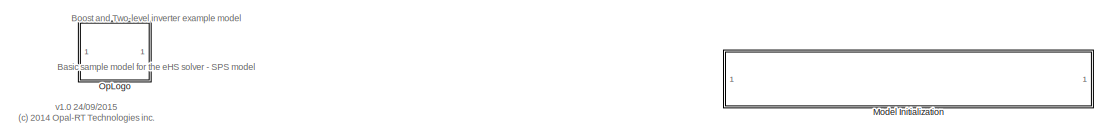
[diagram: root canvas - part 1/3, top left region]
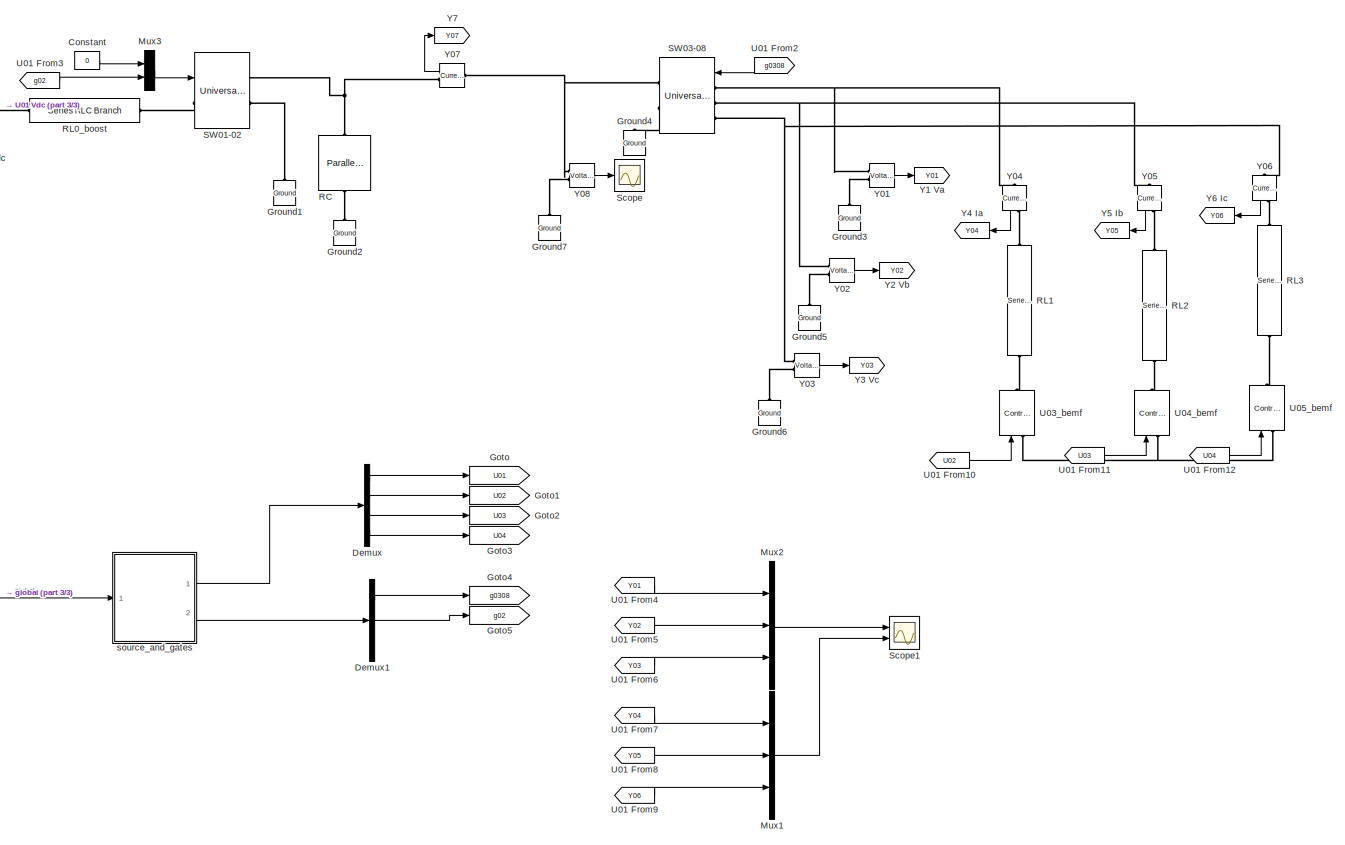
[diagram: root canvas - part 2/3, most of the canvas]
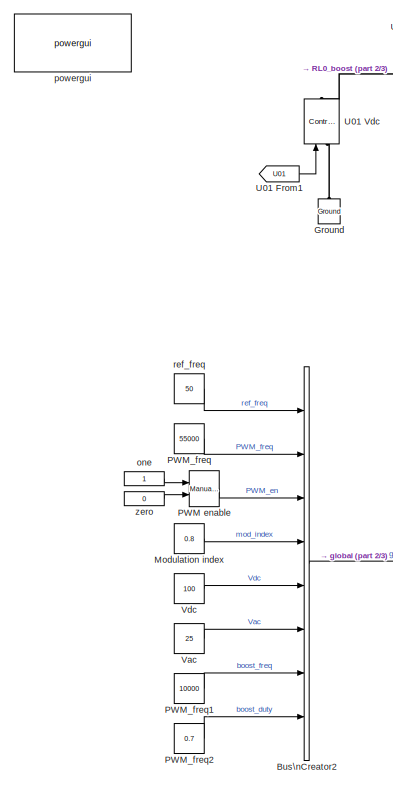
[diagram: root canvas - part 3/3, left side, full height]
MODEL boost_and_two_level_bridge_sps
KIND model
CONFIG InitFcn = Ts = 20e-6;
CONFIG PostLoadFcn = Ts = 20e-6;
BLOCK [BusCreator] Bus\nCreator2
  DisplayOption = bar
  Inputs = 8
  Ports = [8, 1]
  SID = 854
BLOCK [Constant] Constant
  SID = 906
  Value = 0
BLOCK [Demux] Demux
  DisplayOption = bar
  Ports = [1, 4]
  SID = 872
BLOCK [Demux] Demux1
  DisplayOption = bar
  Outputs = [6 1 -1]
  Ports = [1, 3]
  SID = 877
BLOCK [Goto] Goto
  GotoTag = U01
  SID = 873
  TagVisibility = local
BLOCK [Goto] Goto1
  GotoTag = U02
  SID = 874
  TagVisibility = local
BLOCK [Goto] Goto2
  GotoTag = U03
  SID = 875
  TagVisibility = local
BLOCK [Goto] Goto3
  GotoTag = U04
  SID = 876
  TagVisibility = local
BLOCK [Goto] Goto4
  GotoTag = g0308
  SID = 878
  TagVisibility = local
BLOCK [Goto] Goto5
  GotoTag = g02
  SID = 882
  TagVisibility = local
BLOCK [Reference] Ground  REF=powerlib/Elements/Ground
  LConnTagsString = a
  Ports = [0, 0, 0, 0, 0, 1]
  SID = 733
  SourceBlock = powerlib/Elements/Ground
  SourceType = Ground
BLOCK [Reference] Ground1  REF=powerlib/Elements/Ground
  LConnTagsString = a
  Ports = [0, 0, 0, 0, 0, 1]
  SID = 818
  SourceBlock = powerlib/Elements/Ground
  SourceType = Ground
BLOCK [Reference] Ground2  REF=powerlib/Elements/Ground
  LConnTagsString = a
  Ports = [0, 0, 0, 0, 0, 1]
  SID = 819
  SourceBlock = powerlib/Elements/Ground
  SourceType = Ground
BLOCK [Reference] Ground3  REF=powerlib/Elements/Ground
  LConnTagsString = a
  Ports = [0, 0, 0, 0, 0, 1]
  SID = 802
  SourceBlock = powerlib/Elements/Ground
  SourceType = Ground
BLOCK [Reference] Ground4  REF=powerlib/Elements/Ground
  LConnTagsString = a
  Ports = [0, 0, 0, 0, 0, 1]
  SID = 820
  SourceBlock = powerlib/Elements/Ground
  SourceType = Ground
BLOCK [Reference] Ground5  REF=powerlib/Elements/Ground
  LConnTagsString = a
  Ports = [0, 0, 0, 0, 0, 1]
  SID = 803
  SourceBlock = powerlib/Elements/Ground
  SourceType = Ground
BLOCK [Reference] Ground6  REF=powerlib/Elements/Ground
  LConnTagsString = a
  Ports = [0, 0, 0, 0, 0, 1]
  SID = 804
  SourceBlock = powerlib/Elements/Ground
  SourceType = Ground
BLOCK [Reference] Ground7  REF=powerlib/Elements/Ground
  LConnTagsString = a
  Ports = [0, 0, 0, 0, 0, 1]
  SID = 822
  SourceBlock = powerlib/Elements/Ground
  SourceType = Ground
BLOCK [SubSystem] Model Initialization
  CopyFcn = set_param(gcb,'LinkStatus','none')
  FunctionWithSeparateData = off
  MaskCallbackString = ||||
  MaskDisplay = \ntext(5, height*0.5, txt, 'horizontalAlignment', 'left', 'verticalAlignment', 'middle') ;\n
  MaskEnableString = on,on,on,on,on
  MaskHideContents = off
  MaskIconFrame = on
  MaskIconOpaque = on
  MaskIconRotate = none
  MaskIconUnits = pixels
  MaskInitialization = currentBlock = gcb;\nroot = bdroot(currentBlock);\n\nif ~strcmp(get_param(root,'BlockDiagramType'),'library')\n    if prel==1\n        set_param(root, 'PreLoadFcn', InitFcnX);\n    else\n        set_param(root, 'PreLoadFcn', '');\n    end\n    if inif==1\n        set_param(root, 'InitFcn', InitFcnX);\n    else\n        set_param(root, 'InitFcn', '');\n    end\n    if strf==1\n        set_param(roo...<+402ch>
  MaskPortRotate = default
  MaskPromptString = Initialisation|Preload Function|PostLoad Function|InitFcn|StartFcn
  MaskStyleString = edit,checkbox,checkbox,checkbox,checkbox
  MaskToolTipString = on,on,on,on,on
  MaskTunableValueString = on,on,on,on,on
  MaskType = Model Functions
  MaskValueString = Ts = 20e-6;|off|on|on|off
  MaskVariables = InitFcnX=&1;prel=@2;posl=@3;inif=@4;strf=@5;
  MaskVisibilityString = on,on,on,on,on
  MinAlgLoopOccurrences = off
  Opaque = off
  Ports = []
  PropExecContextOutsideSubsystem = off
  RTWSystemCode = Auto
  RequestExecContextInheritance = off
  SID = 909
BLOCK [Constant] Modulation index
  SID = 855
  Value = 0.8
BLOCK [Mux] Mux1
  DisplayOption = bar
  Inputs = 3
  Ports = [3, 1]
  SID = 889
BLOCK [Mux] Mux2
  DisplayOption = bar
  Inputs = 3
  Ports = [3, 1]
  SID = 890
BLOCK [Mux] Mux3
  DisplayOption = bar
  Inputs = 2
  Ports = [2, 1]
  SID = 903
BLOCK [SubSystem] OpLogo
  FunctionWithSeparateData = off
  MaskDisplay = opLogo = imread('efsOpLogo.tif','tif');\nimage(opLogo(:,:,1:3));
  MaskHideContents = off
  MaskIconFrame = on
  MaskIconOpaque = on
  MaskIconRotate = none
  MaskIconUnits = autoscale
  MaskPortRotate = default
  MinAlgLoopOccurrences = off
  Opaque = off
  Ports = []
  PropExecContextOutsideSubsystem = off
  RTWSystemCode = Auto
  RequestExecContextInheritance = off
  SID = 784
BLOCK [Reference] PWM enable  REF=simulink/Signal\nRouting/Manual Switch
  Ports = [2, 1]
  SID = 856
  SourceBlock = simulink/Signal\nRouting/Manual Switch
  SourceType = Manual Switch
  action = 0
  sw = 1
  varsize = off
BLOCK [Constant] PWM_freq
  SID = 857
  Value = 55000
BLOCK [Constant] PWM_freq1
  SID = 899
  Value = 10000
BLOCK [Constant] PWM_freq2
  SID = 900
  Value = 0.7
BLOCK [Reference] RC  REF=powerlib/Elements/Parallel RLC Branch
  AttributesFormatString = \\n
  BranchType = RC
  Capacitance = 10e-3
  Inductance = 1e-3
  InitialCurrent = 0
  InitialVoltage = 0
  LConnTagsString = a
  Measurements = None
  Ports = [0, 0, 0, 0, 0, 1, 1]
  RConnTagsString = __new0
  Resistance = 1e5
  SID = 814
  SetiL0 = off
  Setx0 = off
  SourceBlock = powerlib/Elements/Parallel RLC Branch
  SourceType = Parallel RLC Branch
BLOCK [Reference] RL0_boost  REF=powerlib/Elements/Series RLC Branch
  BranchType = RL
  Capacitance = 2000e-6
  Inductance = 200e-6
  InitialCurrent = 0
  InitialVoltage = 0
  LConnTagsString = __new0
  Measurements = None
  Ports = [0, 0, 0, 0, 0, 1, 1]
  RConnTagsString = __new0
  Resistance = 10e-3
  SID = 813
  SetiL0 = off
  Setx0 = off
  SourceBlock = powerlib/Elements/Series RLC Branch
  SourceType = Series RLC Branch
BLOCK [Reference] RL1  REF=powerlib/Elements/Series RLC Branch
  BranchType = RL
  Capacitance = 2000e-6
  Inductance = 0.2e-3
  InitialCurrent = 0
  InitialVoltage = 0
  LConnTagsString = __new0
  Measurements = None
  Ports = [0, 0, 0, 0, 0, 1, 1]
  RConnTagsString = __new0
  Resistance = 0.1
  SID = 738
  SetiL0 = off
  Setx0 = off
  SourceBlock = powerlib/Elements/Series RLC Branch
  SourceType = Series RLC Branch
BLOCK [Reference] RL2  REF=powerlib/Elements/Series RLC Branch
  BranchType = RL
  Capacitance = 2000e-6
  Inductance = 0.2e-3
  InitialCurrent = 0
  InitialVoltage = 0
  LConnTagsString = __new0
  Measurements = None
  Ports = [0, 0, 0, 0, 0, 1, 1]
  RConnTagsString = __new0
  Resistance = 0.1
  SID = 907
  SetiL0 = off
  Setx0 = off
  SourceBlock = powerlib/Elements/Series RLC Branch
  SourceType = Series RLC Branch
BLOCK [Reference] RL3  REF=powerlib/Elements/Series RLC Branch
  BranchType = RL
  Capacitance = 2000e-6
  Inductance = 0.2e-3
  InitialCurrent = 0
  InitialVoltage = 0
  LConnTagsString = __new0
  Measurements = None
  Ports = [0, 0, 0, 0, 0, 1, 1]
  RConnTagsString = __new0
  Resistance = 0.1
  SID = 908
  SetiL0 = off
  Setx0 = off
  SourceBlock = powerlib/Elements/Series RLC Branch
  SourceType = Series RLC Branch
BLOCK [Reference] SW01-02  REF=powerlib/Power\nElectronics/Universal Bridge
  Arms = 1
  Device = IGBT / Diodes
  ForwardVoltage = 0
  ForwardVoltages = [  0  0  ]
  GTOparameters = [ 10e-6 , 20e-6 ]
  IGBTparameters = [0, 0]
  Lon = 0
  Measurements = None
  Measurements_2 = None
  Ports = [1, 0, 0, 0, 0, 1, 2]
  Ron = 1e-3
  SID = 902
  SnubberCapacitance = inf
  SnubberResistance = 1e5
  SourceBlock = powerlib/Power\nElectronics/Universal Bridge
  SourceType = Universal Bridge
  converterType = Rectifier
BLOCK [Reference] SW03-08  REF=powerlib/Power\nElectronics/Universal Bridge
  Arms = 3
  Device = IGBT / Diodes
  ForwardVoltage = 0
  ForwardVoltages = [  0  0  ]
  GTOparameters = [ 10e-6 , 20e-6 ]
  IGBTparameters = [0, 0]
  Lon = 0
  Measurements = None
  Measurements_2 = None
  Ports = [1, 0, 0, 0, 0, 3, 2]
  Ron = 1e-3
  SID = 812
  SnubberCapacitance = inf
  SnubberResistance = 1e5
  SourceBlock = powerlib/Power\nElectronics/Universal Bridge
  SourceType = Universal Bridge
  converterType = Rectifier
BLOCK [Scope] Scope
  DataFormat = StructureWithTime
  Floating = off
  LimitDataPoints = off
  NumInputPorts = 1
  Ports = [1]
  SID = 886
  SampleTime = 0
  SaveName = ScopeData1
  YMax = 400
  YMin = 290
BLOCK [Scope] Scope1
  DataFormat = StructureWithTime
  Floating = off
  LimitDataPoints = off
  NumInputPorts = 2
  Ports = [2]
  SID = 887
  SampleTime = 0
  SaveName = ScopeData2
  YMax = 5~5
  YMin = -5~-5
BLOCK [From] U01 From1
  GotoTag = U01
  SID = 751
BLOCK [From] U01 From10
  GotoTag = U02
  SID = 808
BLOCK [From] U01 From11
  GotoTag = U03
  SID = 809
BLOCK [From] U01 From12
  GotoTag = U04
  SID = 810
BLOCK [From] U01 From2
  GotoTag = g0308
  SID = 883
BLOCK [From] U01 From3
  GotoTag = g02
  SID = 884
BLOCK [From] U01 From4
  GotoTag = Y01
  SID = 891
BLOCK [From] U01 From5
  GotoTag = Y02
  SID = 892
BLOCK [From] U01 From6
  GotoTag = Y03
  SID = 893
BLOCK [From] U01 From7
  GotoTag = Y04
  SID = 894
BLOCK [From] U01 From8
  GotoTag = Y05
  SID = 895
BLOCK [From] U01 From9
  GotoTag = Y06
  SID = 896
BLOCK [Reference] U01 Vdc  REF=powerlib/Electrical\nSources/Controlled Voltage Source
  Amplitude = 0
  Frequency = 0
  Initialize = on
  Measurements = None
  Phase = 0
  Ports = [1, 0, 0, 0, 0, 1, 1]
  SID = 750
  SourceBlock = powerlib/Electrical\nSources/Controlled Voltage Source
  SourceType = Controlled Voltage Source
  Source_Type = AC
BLOCK [Reference] U03_bemf  REF=powerlib/Electrical\nSources/Controlled Voltage Source
  Amplitude = 0
  Frequency = 0
  Initialize = on
  Measurements = None
  Phase = 0
  Ports = [1, 0, 0, 0, 0, 1, 1]
  SID = 799
  SourceBlock = powerlib/Electrical\nSources/Controlled Voltage Source
  SourceType = Controlled Voltage Source
  Source_Type = AC
BLOCK [Reference] U04_bemf  REF=powerlib/Electrical\nSources/Controlled Voltage Source
  Amplitude = 0
  Frequency = 0
  Initialize = on
  Measurements = None
  Phase = 0
  Ports = [1, 0, 0, 0, 0, 1, 1]
  SID = 800
  SourceBlock = powerlib/Electrical\nSources/Controlled Voltage Source
  SourceType = Controlled Voltage Source
  Source_Type = AC
BLOCK [Reference] U05_bemf  REF=powerlib/Electrical\nSources/Controlled Voltage Source
  Amplitude = 0
  Frequency = 0
  Initialize = on
  Measurements = None
  Phase = 0
  Ports = [1, 0, 0, 0, 0, 1, 1]
  SID = 801
  SourceBlock = powerlib/Electrical\nSources/Controlled Voltage Source
  SourceType = Controlled Voltage Source
  Source_Type = AC
BLOCK [Constant] Vac
  SID = 858
  Value = 25
BLOCK [Constant] Vdc
  SID = 859
  Value = 100
BLOCK [Reference] Y01  REF=powerlib/Measurements/Voltage Measurement
  OutputType = Complex
  PSBequivalent = 0
  PhasorSimulation = off
  Ports = [0, 1, 0, 0, 0, 2]
  SID = 767
  SourceBlock = powerlib/Measurements/Voltage Measurement
  SourceType = Voltage Measurement
BLOCK [Reference] Y02  REF=powerlib/Measurements/Voltage Measurement
  OutputType = Complex
  PSBequivalent = 0
  PhasorSimulation = off
  Ports = [0, 1, 0, 0, 0, 2]
  SID = 768
  SourceBlock = powerlib/Measurements/Voltage Measurement
  SourceType = Voltage Measurement
BLOCK [Reference] Y03  REF=powerlib/Measurements/Voltage Measurement
  OutputType = Complex
  PSBequivalent = 0
  PhasorSimulation = off
  Ports = [0, 1, 0, 0, 0, 2]
  SID = 769
  SourceBlock = powerlib/Measurements/Voltage Measurement
  SourceType = Voltage Measurement
BLOCK [Reference] Y04  REF=powerlib/Measurements/Current Measurement
  OutputType = Complex
  PSBequivalent = 0
  PhasorSimulation = off
  Ports = [0, 1, 0, 0, 0, 1, 1]
  SID = 770
  SourceBlock = powerlib/Measurements/Current Measurement
  SourceType = Current Measurement
BLOCK [Reference] Y05  REF=powerlib/Measurements/Current Measurement
  OutputType = Complex
  PSBequivalent = 0
  PhasorSimulation = off
  Ports = [0, 1, 0, 0, 0, 1, 1]
  SID = 771
  SourceBlock = powerlib/Measurements/Current Measurement
  SourceType = Current Measurement
BLOCK [Reference] Y06  REF=powerlib/Measurements/Current Measurement
  OutputType = Complex
  PSBequivalent = 0
  PhasorSimulation = off
  Ports = [0, 1, 0, 0, 0, 1, 1]
  SID = 772
  SourceBlock = powerlib/Measurements/Current Measurement
  SourceType = Current Measurement
BLOCK [Reference] Y07  REF=powerlib/Measurements/Current Measurement
  OutputType = Complex
  PSBequivalent = 0
  PhasorSimulation = off
  Ports = [0, 1, 0, 0, 0, 1, 1]
  SID = 773
  SourceBlock = powerlib/Measurements/Current Measurement
  SourceType = Current Measurement
BLOCK [Reference] Y08  REF=powerlib/Measurements/Voltage Measurement
  OutputType = Complex
  PSBequivalent = 0
  PhasorSimulation = off
  Ports = [0, 1, 0, 0, 0, 2]
  SID = 821
  SourceBlock = powerlib/Measurements/Voltage Measurement
  SourceType = Voltage Measurement
BLOCK [Goto] Y1 Va
  GotoTag = Y01
  SID = 775
  TagVisibility = local
BLOCK [Goto] Y2 Vb
  GotoTag = Y02
  SID = 776
  TagVisibility = local
BLOCK [Goto] Y3 Vc
  GotoTag = Y03
  SID = 777
  TagVisibility = local
BLOCK [Goto] Y4 Ia
  GotoTag = Y04
  SID = 778
  TagVisibility = local
BLOCK [Goto] Y5 Ib
  GotoTag = Y05
  SID = 779
  TagVisibility = local
BLOCK [Goto] Y6 Ic
  GotoTag = Y06
  SID = 780
  TagVisibility = local
BLOCK [Goto] Y7
  GotoTag = Y07
  SID = 781
  TagVisibility = local
BLOCK [Constant] one
  SID = 860
BLOCK [Reference] powergui  REF=powerlib/powergui
  DisableRonSwitches = off
  DisableSnubberDevices = off
  DisableVfSwitches = off
  DisplayEquations = off
  DisplayStyle = 1
  EnableUseOfTLC = off
  ErrMax = 1e-4
  Frange = [0:2:500]
  FreqAxis = off
  FunctionMessages = off
  HookPort = off
  Interpol = off
  Iterations = 50
  MaxFrequency = 1000
  Pbase = 100e6
  Ports = []
  Priority = 1
  ResistiveCurrentMeasurement = off
  RestoreLinks = warning
  RmsSteady = 1
  SID = 24
  SPID = off
  SampleTime = Ts
  ShowGrid = off
  SolverType = Tustin
  SourceBlock = powerlib/powergui
  SourceType = PSB option menu block
  StartTime = 7.29
  SwTol = 0
  Ts = 0
  UnitsV = kV
  UnitsW = MW
  UserData = DataTag0
  UserDataPersistent = on
  Xlog = on
  Ylog = off
  ZoomFFT = off
  cycles = 3
  display = off
  echomessages = off
  frequency = 60
  frequencyindice = 0
  frequencyindicesteady = 1
  fundamental = 50
  methode = off
  save = off
  structure = ScopeData
  variable = ZData
  x0status = blocks
BLOCK [Constant] ref_freq
  SID = 865
  Value = 50
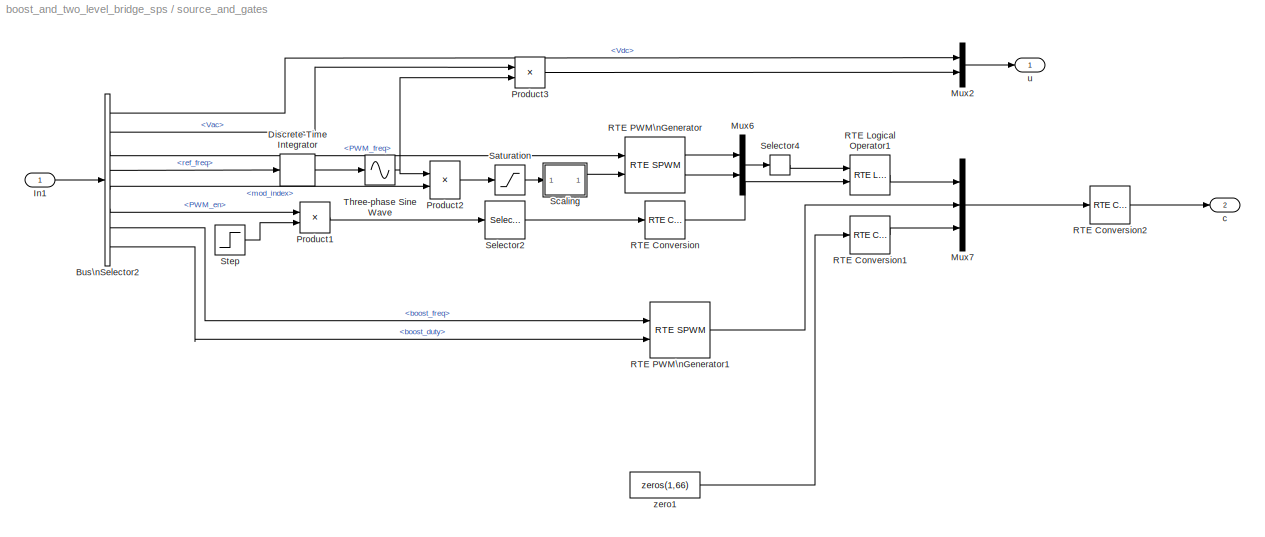
BLOCK [SubSystem] source_and_gates
  FunctionWithSeparateData = off
  MaskHideContents = off
  MinAlgLoopOccurrences = off
  Opaque = off
  Ports = [1, 2]
  PropExecContextOutsideSubsystem = off
  RTWSystemCode = Auto
  RequestExecContextInheritance = off
  SID = 823
BLOCK [BusSelector] source_and_gates/Bus\nSelector2
  OutputSignals = Vdc,Vac,PWM_freq,ref_freq,mod_index,PWM_en,boost_freq,boost_duty
  Ports = [1, 8]
  SID = 825
BLOCK [DiscreteIntegrator] source_and_gates/Discrete-Time Integrator
  ExternalReset = none
  ICPrevOutput = DiscIntNeverNeededParam
  ICPrevScaledInput = DiscIntNeverNeededParam
  InitialConditionSource = internal
  IntegratorMethod = Integration: Forward Euler
  Ports = [1, 1]
  SID = 826
  SampleTime = 20e-6
  gainval = 2*pi
BLOCK [Inport] source_and_gates/In1
  IconDisplay = Port number
  SID = 824
BLOCK [Mux] source_and_gates/Mux2
  DisplayOption = bar
  Inputs = 2
  Ports = [2, 1]
  SID = 827
BLOCK [Mux] source_and_gates/Mux6
  DisplayOption = bar
  Inputs = 2
  Ports = [2, 1]
  SID = 828
BLOCK [Mux] source_and_gates/Mux7
  DisplayOption = bar
  Inputs = [6 1 -1]
  Ports = [3, 1]
  SID = 829
BLOCK [Product] source_and_gates/Product1
  InputSameDT = off
  OutDataTypeStr = Inherit: Inherit via internal rule
  Ports = [2, 1]
  SID = 830
  SaturateOnIntegerOverflow = off
BLOCK [Product] source_and_gates/Product2
  InputSameDT = off
  OutDataTypeStr = Inherit: Inherit via internal rule
  Ports = [2, 1]
  SID = 831
  SaturateOnIntegerOverflow = off
BLOCK [Product] source_and_gates/Product3
  InputSameDT = off
  OutDataTypeStr = Inherit: Inherit via internal rule
  Ports = [2, 1]
  SID = 832
  SaturateOnIntegerOverflow = off
BLOCK [Reference] source_and_gates/RTE Conversion  REF=rteventslib/Signal\nAttributes/RTE Conversion
  Ports = [1, 1]
  SID = 833
  SourceBlock = rteventslib/Signal\nAttributes/RTE Conversion
  SourceType = RTE Conversion
  compensation = Enabled
  inputdatatype = Double
  nbMaxEvents = 4
  outputdatatype = RTE Boolean
  sampleTime = Ts
BLOCK [Reference] source_and_gates/RTE Conversion1  REF=rteventslib/Signal\nAttributes/RTE Conversion
  Ports = [1, 1]
  SID = 834
  SourceBlock = rteventslib/Signal\nAttributes/RTE Conversion
  SourceType = RTE Conversion
  compensation = Enabled
  inputdatatype = Double
  nbMaxEvents = 4
  outputdatatype = RTE Boolean
  sampleTime = Ts
BLOCK [Reference] source_and_gates/RTE Conversion2  REF=rteventslib/Signal\nAttributes/RTE Conversion
  Ports = [1, 1]
  SID = 885
  SourceBlock = rteventslib/Signal\nAttributes/RTE Conversion
  SourceType = RTE Conversion
  compensation = Disabled
  inputdatatype = RTE Boolean
  nbMaxEvents = 4
  outputdatatype = Double
  sampleTime = Ts
BLOCK [Reference] source_and_gates/RTE Logical Operator1  REF=rteventslib/Math\nOperations/RTE Logical Operator
  LogicalOperator = AND
  NbrInput = 2
  NbrMaxEvents = 4
  Ports = [2, 1]
  SID = 835
  SourceBlock = rteventslib/Math\nOperations/RTE Logical Operator
  SourceType = RTE Logical Operator
BLOCK [Reference] source_and_gates/RTE PWM\nGenerator  REF=rteventslib/Sources/RTE SPWM
  CenterAlignmentMode = On
  ComplementaryMode = on
  EnablingPort = off
  MaxEvents = 4
  MaxFreq = 100e3
  MinFreq = 0
  NumberPhases = 3-ph
  Ports = [2, 2]
  RiseTimeDelay = 1e-6
  SID = 836
  SampleTime = Ts
  SourceBlock = rteventslib/Sources/RTE SPWM
  SourceType = RTE SPWM
  SpaceVector = off
BLOCK [Reference] source_and_gates/RTE PWM\nGenerator1  REF=rteventslib/Sources/RTE SPWM
  CenterAlignmentMode = On
  ComplementaryMode = off
  EnablingPort = off
  MaxEvents = 4
  MaxFreq = 100e3
  MinFreq = 0
  NumberPhases = 1-ph
  Ports = [2, 1]
  RiseTimeDelay = 1e-6
  SID = 901
  SampleTime = Ts
  SourceBlock = rteventslib/Sources/RTE SPWM
  SourceType = RTE SPWM
  SpaceVector = off
BLOCK [Saturate] source_and_gates/Saturation
  InputPortMap = u0
  LowerLimit = -1
  Ports = [1, 1]
  SID = 837
  UpperLimit = 1
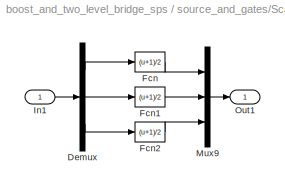
BLOCK [SubSystem] source_and_gates/Scaling
  FunctionWithSeparateData = off
  MaskHideContents = off
  MinAlgLoopOccurrences = off
  Opaque = off
  Ports = [1, 1]
  PropExecContextOutsideSubsystem = off
  RTWSystemCode = Auto
  RequestExecContextInheritance = off
  SID = 838
BLOCK [Demux] source_and_gates/Scaling/Demux
  DisplayOption = bar
  Outputs = 3
  Ports = [1, 3]
  SID = 840
BLOCK [Fcn] source_and_gates/Scaling/Fcn
  Expr = (u+1)/2
  SID = 841
BLOCK [Fcn] source_and_gates/Scaling/Fcn1
  Expr = (u+1)/2
  SID = 842
BLOCK [Fcn] source_and_gates/Scaling/Fcn2
  Expr = (u+1)/2
  SID = 843
BLOCK [Inport] source_and_gates/Scaling/In1
  IconDisplay = Port number
  SID = 839
BLOCK [Mux] source_and_gates/Scaling/Mux9
  DisplayOption = bar
  Inputs = 3
  Ports = [3, 1]
  SID = 844
BLOCK [Outport] source_and_gates/Scaling/Out1
  IconDisplay = Port number
  SID = 845
BLOCK [Selector] source_and_gates/Selector2
  IndexOptions = Index vector (dialog)
  Indices = [ones(1,6)*1]
  InputPortWidth = 1
  OutputSizes = 1
  Ports = [1, 1]
  SID = 847
BLOCK [Selector] source_and_gates/Selector4
  IndexOptions = Index vector (dialog)
  Indices = [1 4 2 5 3 6]
  OutputSizes = [(-2)]
  Ports = [1, 1]
  SID = 848
BLOCK [Step] source_and_gates/Step
  SID = 849
  SampleTime = Ts
  Time = 0
BLOCK [Sin] source_and_gates/Three-phase Sine Wave
  Phase = [0 -2*pi/3 2*pi/3]
  Ports = [1, 1]
  SID = 850
  TimeSource = Use external signal
BLOCK [Outport] source_and_gates/c
  IconDisplay = Port number
  Port = 2
  SID = 853
BLOCK [Outport] source_and_gates/u
  IconDisplay = Port number
  SID = 852
BLOCK [Constant] source_and_gates/zero1
  SID = 851
  Value = zeros(1,66)
BLOCK [Constant] zero
  SID = 868
  Value = 0
ANNOTATION (root): Basic sample model for the eHS solver - SPS model
ANNOTATION (root): Boost and Two-level inverter example model
ANNOTATION (root): v1.0 24/09/2015\n(c) 2014 Opal-RT Technologies inc.
LINE Bus\nCreator2:1 -> source_and_gates:1
LINE Constant:1 -> Mux3:1
LINE Demux1:1 -> Goto4:1
LINE Demux1:2 -> Goto5:1
LINE Demux:1 -> Goto:1
LINE Demux:2 -> Goto1:1
LINE Demux:3 -> Goto2:1
LINE Demux:4 -> Goto3:1
LINE Modulation index:1 -> Bus\nCreator2:4
LINE Mux1:1 -> Scope1:2
LINE Mux2:1 -> Scope1:1
LINE Mux3:1 -> SW01-02:1
LINE PWM enable:1 -> Bus\nCreator2:3
LINE PWM_freq1:1 -> Bus\nCreator2:7
LINE PWM_freq2:1 -> Bus\nCreator2:8
LINE PWM_freq:1 -> Bus\nCreator2:2
LINE U01 From10:1 -> U03_bemf:1
LINE U01 From11:1 -> U04_bemf:1
LINE U01 From12:1 -> U05_bemf:1
LINE U01 From1:1 -> U01 Vdc:1
LINE U01 From2:1 -> SW03-08:1
LINE U01 From3:1 -> Mux3:2
LINE U01 From4:1 -> Mux2:1
LINE U01 From5:1 -> Mux2:2
LINE U01 From6:1 -> Mux2:3
LINE U01 From7:1 -> Mux1:1
LINE U01 From8:1 -> Mux1:2
LINE U01 From9:1 -> Mux1:3
LINE Vac:1 -> Bus\nCreator2:6
LINE Vdc:1 -> Bus\nCreator2:5
LINE Y01:1 -> Y1 Va:1
LINE Y02:1 -> Y2 Vb:1
LINE Y03:1 -> Y3 Vc:1
LINE Y04:1 -> Y4 Ia:1
LINE Y05:1 -> Y5 Ib:1
LINE Y06:1 -> Y6 Ic:1
LINE Y07:1 -> Y7:1
LINE Y08:1 -> Scope:1
LINE one:1 -> PWM enable:1
LINE ref_freq:1 -> Bus\nCreator2:1
LINE source_and_gates/Bus\nSelector2:1 -> source_and_gates/Mux2:1
LINE source_and_gates/Bus\nSelector2:2 -> source_and_gates/Product3:1
LINE source_and_gates/Bus\nSelector2:3 -> source_and_gates/RTE PWM\nGenerator:1
LINE source_and_gates/Bus\nSelector2:4 -> source_and_gates/Discrete-Time Integrator:1
LINE source_and_gates/Bus\nSelector2:5 -> source_and_gates/Product2:2
LINE source_and_gates/Bus\nSelector2:6 -> source_and_gates/Product1:1
LINE source_and_gates/Bus\nSelector2:7 -> source_and_gates/RTE PWM\nGenerator1:1
LINE source_and_gates/Bus\nSelector2:8 -> source_and_gates/RTE PWM\nGenerator1:2
LINE source_and_gates/Discrete-Time Integrator:1 -> source_and_gates/Three-phase Sine Wave:1
LINE source_and_gates/In1:1 -> source_and_gates/Bus\nSelector2:1
LINE source_and_gates/Mux2:1 -> source_and_gates/u:1
LINE source_and_gates/Mux6:1 -> source_and_gates/Selector4:1
LINE source_and_gates/Mux7:1 -> source_and_gates/RTE Conversion2:1
LINE source_and_gates/Product1:1 -> source_and_gates/Selector2:1
LINE source_and_gates/Product2:1 -> source_and_gates/Saturation:1
LINE source_and_gates/Product3:1 -> source_and_gates/Mux2:2
LINE source_and_gates/RTE Conversion1:1 -> source_and_gates/Mux7:3
LINE source_and_gates/RTE Conversion2:1 -> source_and_gates/c:1
LINE source_and_gates/RTE Conversion:1 -> source_and_gates/RTE Logical Operator1:2
LINE source_and_gates/RTE Logical Operator1:1 -> source_and_gates/Mux7:1
LINE source_and_gates/RTE PWM\nGenerator1:1 -> source_and_gates/Mux7:2
LINE source_and_gates/RTE PWM\nGenerator:1 -> source_and_gates/Mux6:1
LINE source_and_gates/RTE PWM\nGenerator:2 -> source_and_gates/Mux6:2
LINE source_and_gates/Saturation:1 -> source_and_gates/Scaling:1
LINE source_and_gates/Scaling/Demux:1 -> source_and_gates/Scaling/Fcn:1
LINE source_and_gates/Scaling/Demux:2 -> source_and_gates/Scaling/Fcn1:1
LINE source_and_gates/Scaling/Demux:3 -> source_and_gates/Scaling/Fcn2:1
LINE source_and_gates/Scaling/Fcn1:1 -> source_and_gates/Scaling/Mux9:2
LINE source_and_gates/Scaling/Fcn2:1 -> source_and_gates/Scaling/Mux9:3
LINE source_and_gates/Scaling/Fcn:1 -> source_and_gates/Scaling/Mux9:1
LINE source_and_gates/Scaling/In1:1 -> source_and_gates/Scaling/Demux:1
LINE source_and_gates/Scaling/Mux9:1 -> source_and_gates/Scaling/Out1:1
LINE source_and_gates/Scaling:1 -> source_and_gates/RTE PWM\nGenerator:2
LINE source_and_gates/Selector2:1 -> source_and_gates/RTE Conversion:1
LINE source_and_gates/Selector4:1 -> source_and_gates/RTE Logical Operator1:1
LINE source_and_gates/Step:1 -> source_and_gates/Product1:2
NET source_and_gates/Three-phase Sine Wave:1 -> source_and_gates/Product2:1, source_and_gates/Product3:2
LINE source_and_gates/zero1:1 -> source_and_gates/RTE Conversion1:1
LINE source_and_gates:1 -> Demux:1
LINE source_and_gates:2 -> Demux1:1
LINE zero:1 -> PWM enable:2
PLINE Ground1:LConn1 -- SW01-02:RConn2
PLINE Ground2:LConn1 -- RC:LConn1
PLINE Ground3:LConn1 -- Y01:LConn2
PLINE Ground4:LConn1 -- SW03-08:RConn2
PLINE Ground5:LConn1 -- Y02:LConn2
PLINE Ground6:LConn1 -- Y03:LConn2
PLINE Ground7:LConn1 -- Y08:LConn2
PLINE Ground:LConn1 -- U01 Vdc:LConn1
PNET net1: RC:RConn1 -- SW01-02:RConn1 -- Y07:RConn1
PLINE RL0_boost:LConn1 -- SW01-02:LConn1
PLINE RL0_boost:RConn1 -- U01 Vdc:RConn1
PLINE RL1:LConn1 -- Y04:RConn1
PLINE RL1:RConn1 -- U03_bemf:RConn1
PLINE RL2:LConn1 -- Y05:RConn1
PLINE RL2:RConn1 -- U04_bemf:RConn1
PLINE RL3:LConn1 -- Y06:RConn1
PLINE RL3:RConn1 -- U05_bemf:RConn1
PNET net2: SW03-08:LConn1 -- Y01:LConn1 -- Y04:LConn1
PNET net3: SW03-08:LConn2 -- Y02:LConn1 -- Y05:LConn1
PNET net4: SW03-08:LConn3 -- Y03:LConn1 -- Y06:LConn1
PNET net5: SW03-08:RConn1 -- Y07:LConn1 -- Y08:LConn1
PNET net6: U03_bemf:LConn1 -- U04_bemf:LConn1 -- U05_bemf:LConn1
note: NET lines group one-source signal fan-out (src -> all destinations, sorted); 1:1 wires keep LINE; PNET lines group multi-terminal physical nets as a canonical sorted terminal list (undirected conserving connections); 2-terminal nets keep the pairwise PLINE form
